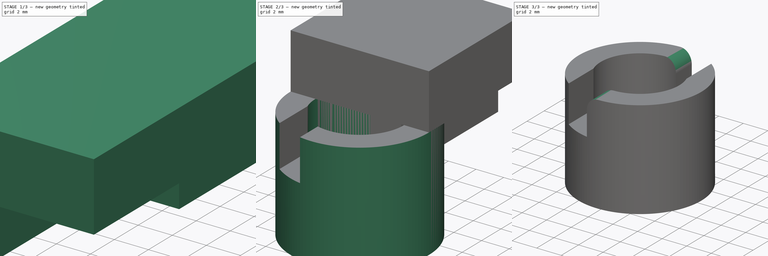
[diagram: build sequence overview — one tinted view per stage of 3, left to right]
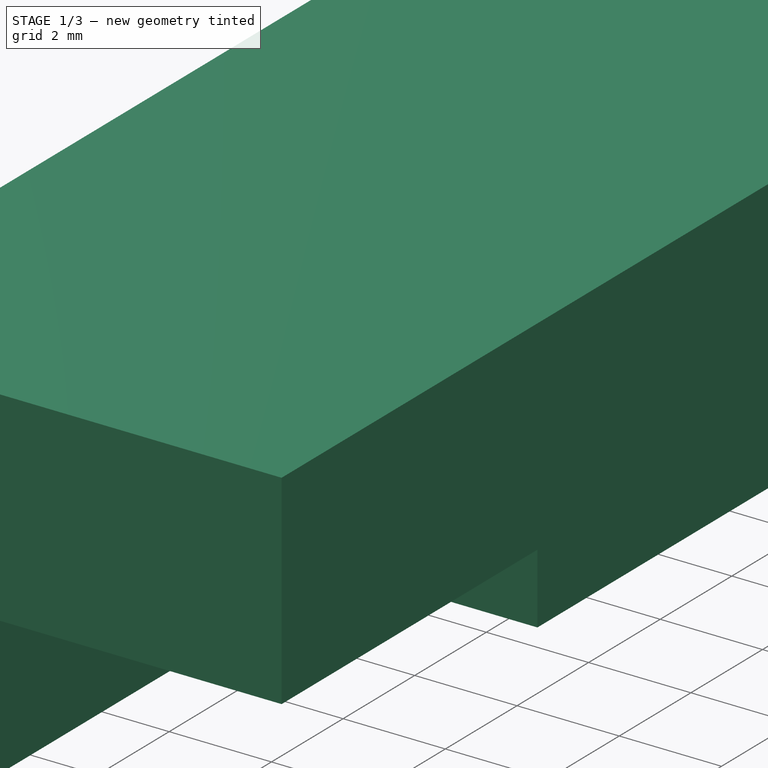
[diagram: stage 1 of 3 — iso view after this stage's code; geometry added in this stage tinted green]
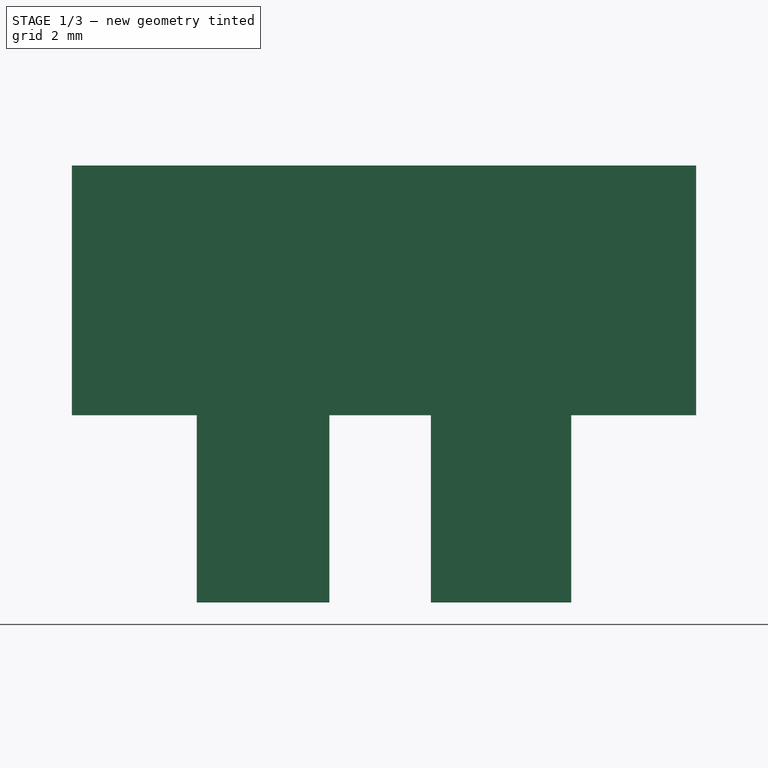
[diagram: stage 1 of 3 — front view after this stage's code; geometry added in this stage tinted green]
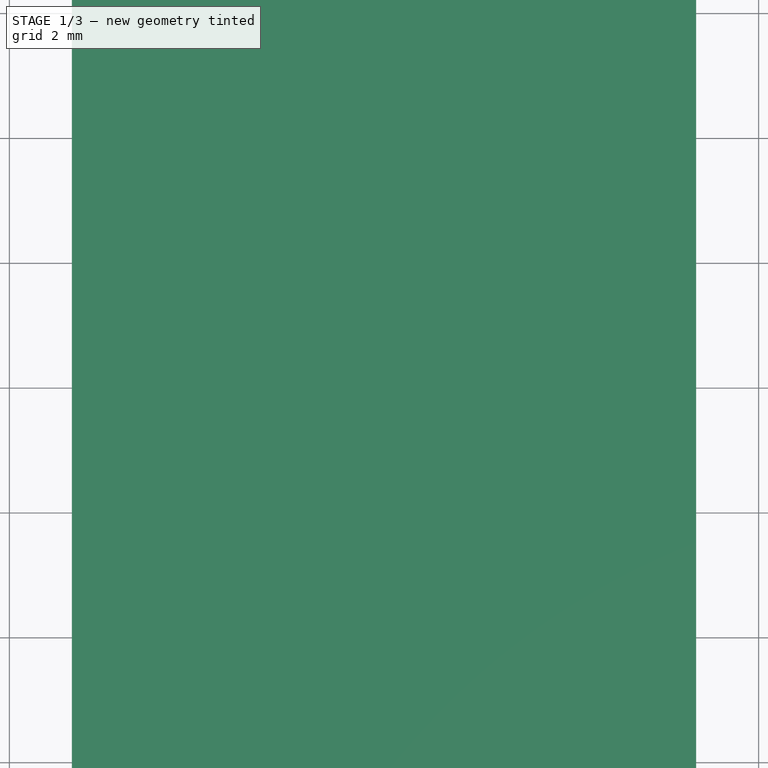
[diagram: stage 1 of 3 — top view after this stage's code; geometry added in this stage tinted green]
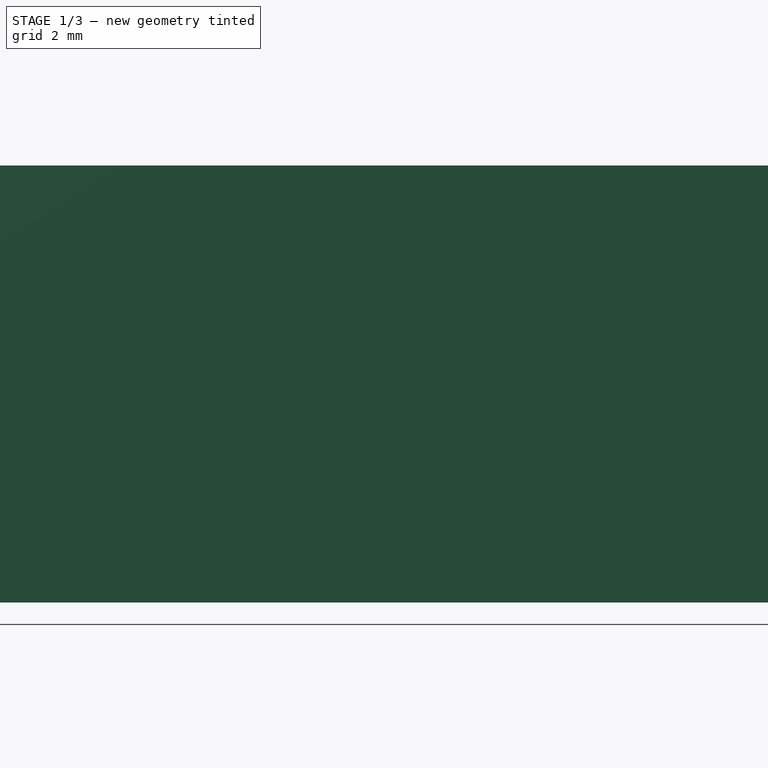
[diagram: stage 1 of 3 — right view after this stage's code; geometry added in this stage tinted green]
FCSTD DOCUMENT  (FreeCAD 0.15R4671 (Git))
Label: ButtonFrame
License: All rights reserved
LicenseURL: http://en.wikipedia.org/wiki/All_rights_reserved
objects: Sketcher::SketchObject×3, PartDesign::Pad×3, Part::Cut×2, PartDesign::Fillet×1
note: 12 computed .brp shape members not serialized (recipe doc carries the construction recipe); baked Part::Feature solids carry a one-line shape summary decoded from their .brp

FEATURE [Sketcher::SketchObject] Sketch001
  Placement = pos=(0,0,0) rot=(1,0,0;1.5708rad)
  sketch-geometry (8):
    g0: LineSegment StartX=5 StartY=8 StartZ=0 EndX=5 EndY=12 EndZ=0
    g1: LineSegment StartX=5 StartY=12 StartZ=0 EndX=-5 EndY=12 EndZ=0
    g2: LineSegment StartX=-5 StartY=12 StartZ=0 EndX=-5 EndY=8 EndZ=0
    g3: LineSegment StartX=-0.875 StartY=8 StartZ=0 EndX=-0.875 EndY=5 EndZ=0
    g4: LineSegment StartX=-0.875 StartY=5 StartZ=0 EndX=-3 EndY=5 EndZ=0
    g5: LineSegment StartX=-3 StartY=5 StartZ=0 EndX=-3 EndY=8 EndZ=0
    g6: LineSegment StartX=-5 StartY=8 StartZ=0 EndX=-3 EndY=8 EndZ=0
    g7: LineSegment StartX=-0.875 StartY=8 StartZ=0 EndX=5 EndY=8 EndZ=0
  constraints (23):
    c: DistanceY(g-1,g3) = 8
    c: Vertical(g0)
    c: Coincident(g0,g1)
    c: Horizontal(g1)
    c: Coincident(g1,g2)
    c: Vertical(g2)
    c: DistanceY(g-1,g1) = 12
    c: Symmetric(g0,g2,g-2)
    c: DistanceX(g1) = -10
    c: Vertical(g3)
    c: Coincident(g4,g3)
    c: Horizontal(g4)
    c: Coincident(g5,g4)
    c: Vertical(g5)
    c: Coincident(g6,g2)
    c: Coincident(g6,g5)
    c: Horizontal(g6)
    c: DistanceX(g4) = -2.125
    c: DistanceY(g5) = 3
    c: Coincident(g7,g3)
    c: Coincident(g7,g0)
    c: Horizontal(g7)
    c: DistanceX(g6) = 2
FEATURE [PartDesign::Pad] Pad001
  Length = 10
  Length2 = 100
  Placement = pos=(0,0,0) rot=(1,0,0;1.5708rad)
  Sketch = -> Sketch001
  Type = 0
FEATURE [Sketcher::SketchObject] Sketch002
  Placement = pos=(0,0,0) rot=(1,0,0;1.5708rad)
  sketch-geometry (8):
    g0: LineSegment StartX=-5 StartY=8 StartZ=0 EndX=0.75 EndY=8 EndZ=0
    g1: LineSegment StartX=0.75 StartY=8 StartZ=0 EndX=0.75 EndY=5 EndZ=0
    g2: LineSegment StartX=0.75 StartY=5 StartZ=0 EndX=3 EndY=5 EndZ=0
    g3: LineSegment StartX=3 StartY=5 StartZ=0 EndX=3 EndY=8 EndZ=0
    g4: LineSegment StartX=3 StartY=8 StartZ=0 EndX=5 EndY=8 EndZ=0
    g5: LineSegment StartX=5 StartY=8 StartZ=0 EndX=5 EndY=12 EndZ=0
    g6: LineSegment StartX=5 StartY=12 StartZ=0 EndX=-5 EndY=12 EndZ=0
    g7: LineSegment StartX=-5 StartY=12 StartZ=0 EndX=-5 EndY=8 EndZ=0
  constraints (23):
    c: Horizontal(g0)
    c: Coincident(g0,g1)
    c: Vertical(g1)
    c: Coincident(g1,g2)
    c: Horizontal(g2)
    c: Coincident(g2,g3)
    c: Vertical(g3)
    c: Coincident(g3,g4)
    c: Horizontal(g4)
    c: Coincident(g4,g5)
    c: Vertical(g5)
    c: Coincident(g5,g6)
    c: Horizontal(g6)
    c: Coincident(g6,g7)
    c: Vertical(g7)
    c: Coincident(g0,g7)
    c: DistanceX(g4) = 2
    c: DistanceY(g-1,g5) = 12
    c: DistanceX(g6) = -10
    c: Symmetric(g0,g4,g-2)
    c: DistanceY(g5) = 4
    c: DistanceX(g2) = 2.25
    c: DistanceY(g3) = 3
FEATURE [PartDesign::Pad] Pad002
  Length = 10
  Length2 = 100
  Placement = pos=(0,0,0) rot=(1,0,0;1.5708rad)
  Reversed = true
  Sketch = -> Sketch002
  Type = 0
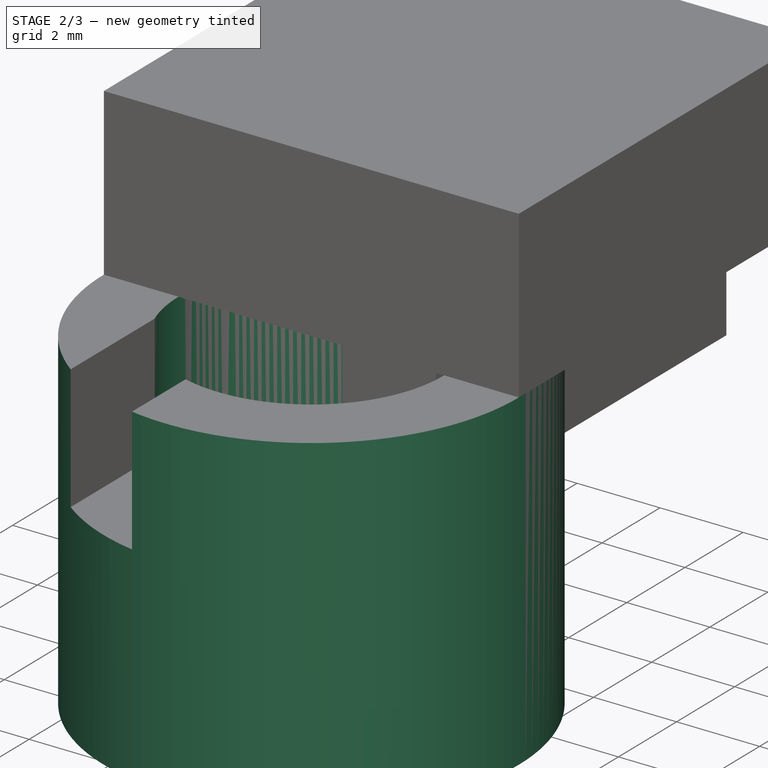
[diagram: stage 2 of 3 — iso view after this stage's code; geometry added in this stage tinted green]
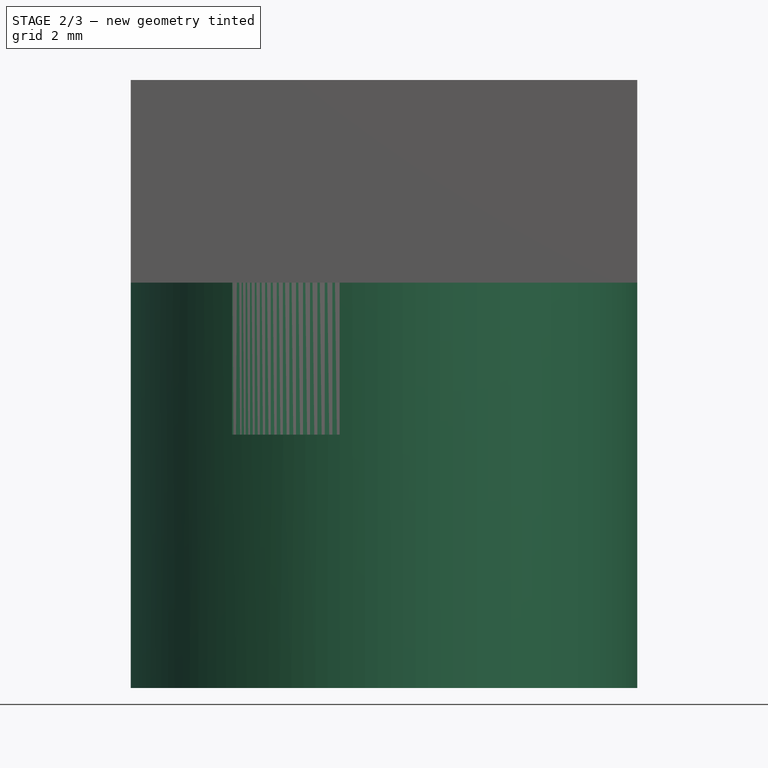
[diagram: stage 2 of 3 — front view after this stage's code; geometry added in this stage tinted green]
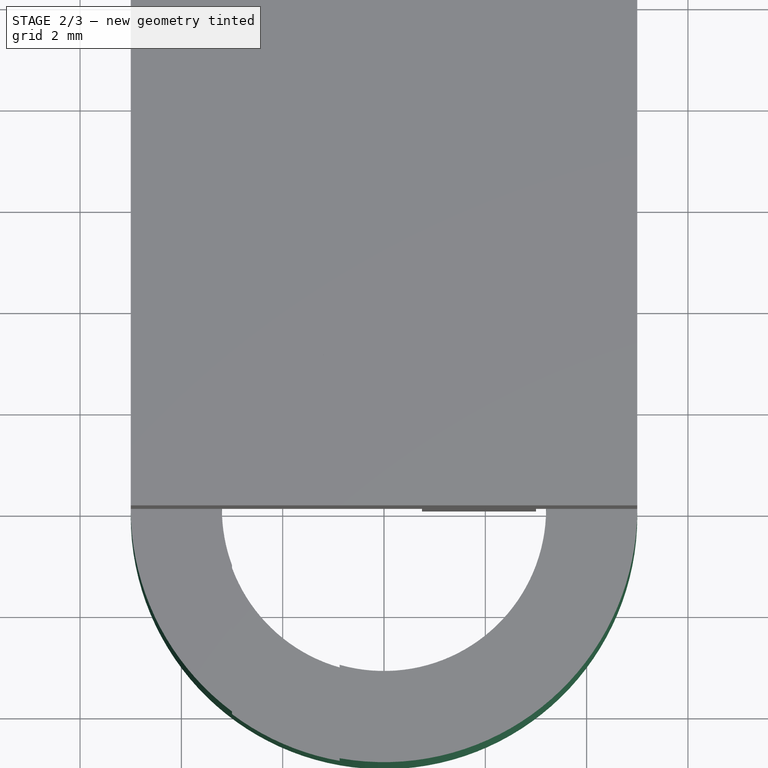
[diagram: stage 2 of 3 — top view after this stage's code; geometry added in this stage tinted green]
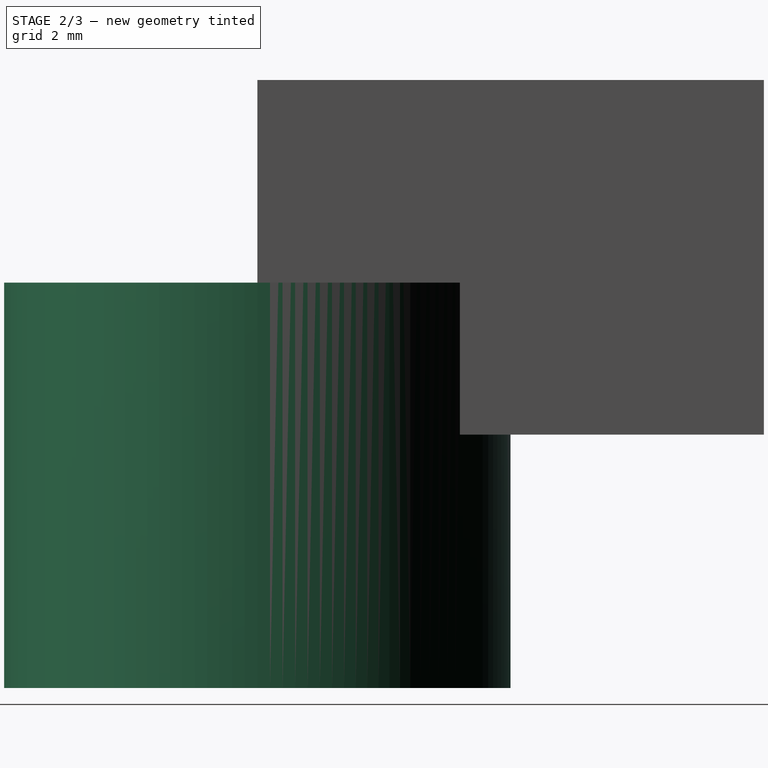
[diagram: stage 2 of 3 — right view after this stage's code; geometry added in this stage tinted green]
FEATURE [Sketcher::SketchObject] Sketch
  sketch-geometry (2):
    g0: Circle CenterX=0 CenterY=0 CenterZ=0 NormalX=0 NormalY=0 NormalZ=1 Radius=5
    g1: Circle CenterX=0 CenterY=0 CenterZ=0 NormalX=0 NormalY=0 NormalZ=1 Radius=3.2
  constraints (4):
    c: Coincident(g0,g-1)
    c: Radius(g0) = 5
    c: Coincident(g1,g-1)
    c: Radius(g1) = 3.2
FEATURE [PartDesign::Pad] Pad
  Length = 12
  Length2 = 100
  Sketch = -> Sketch
  Type = 0
FEATURE [Part::Cut] Cut
  Base = -> Pad
  Tool = -> Pad001
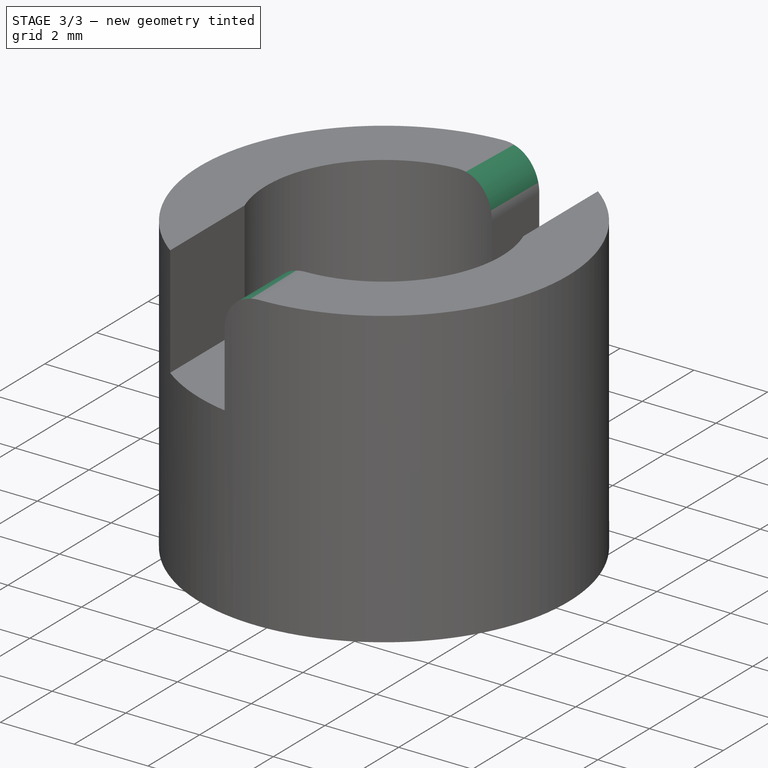
[diagram: stage 3 of 3 — iso view after this stage's code; geometry added in this stage tinted green]
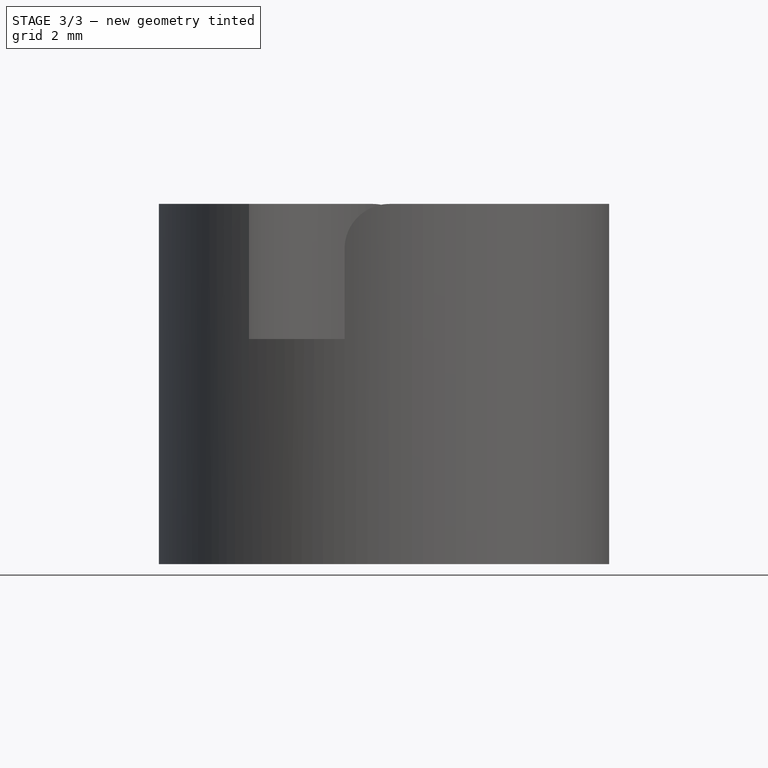
[diagram: stage 3 of 3 — front view after this stage's code; geometry added in this stage tinted green]
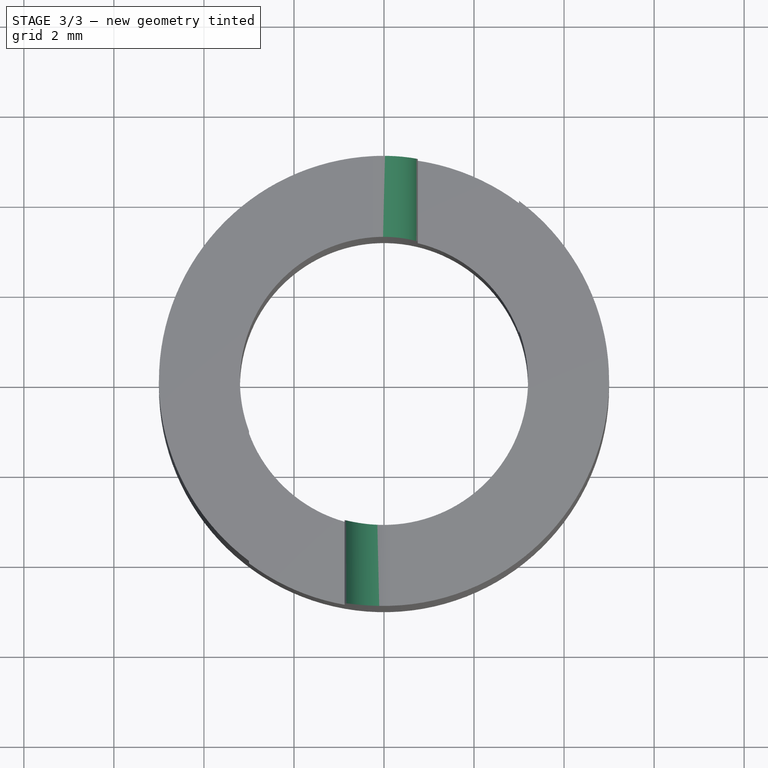
[diagram: stage 3 of 3 — top view after this stage's code; geometry added in this stage tinted green]
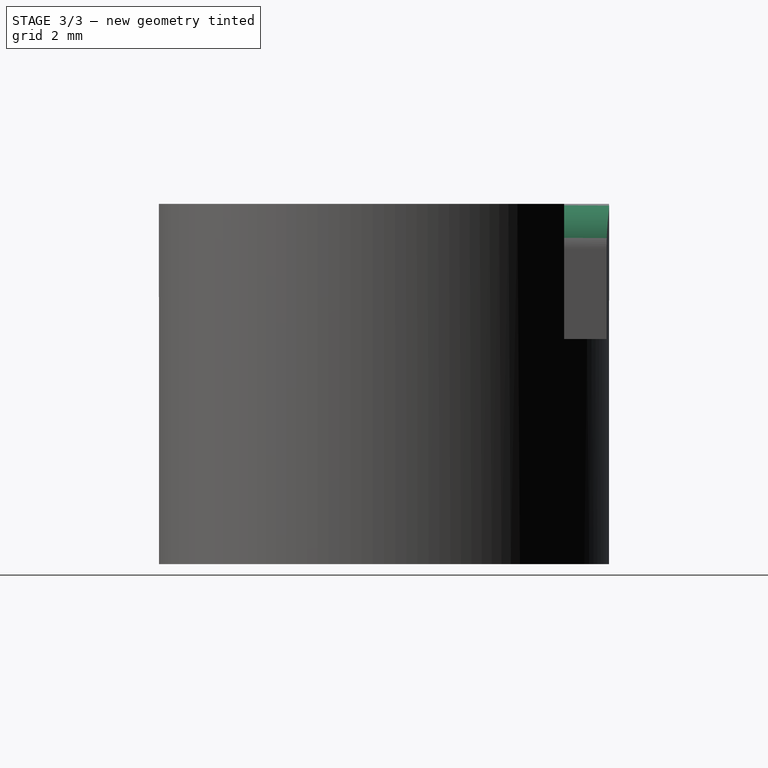
[diagram: stage 3 of 3 — right view after this stage's code; geometry added in this stage tinted green]
FEATURE [Part::Cut] Cut001
  Base = -> Cut
  Tool = -> Pad002
FEATURE [PartDesign::Fillet] Fillet
  Base = -> Cut001 [Edge15,Edge25]
  Radius = 1
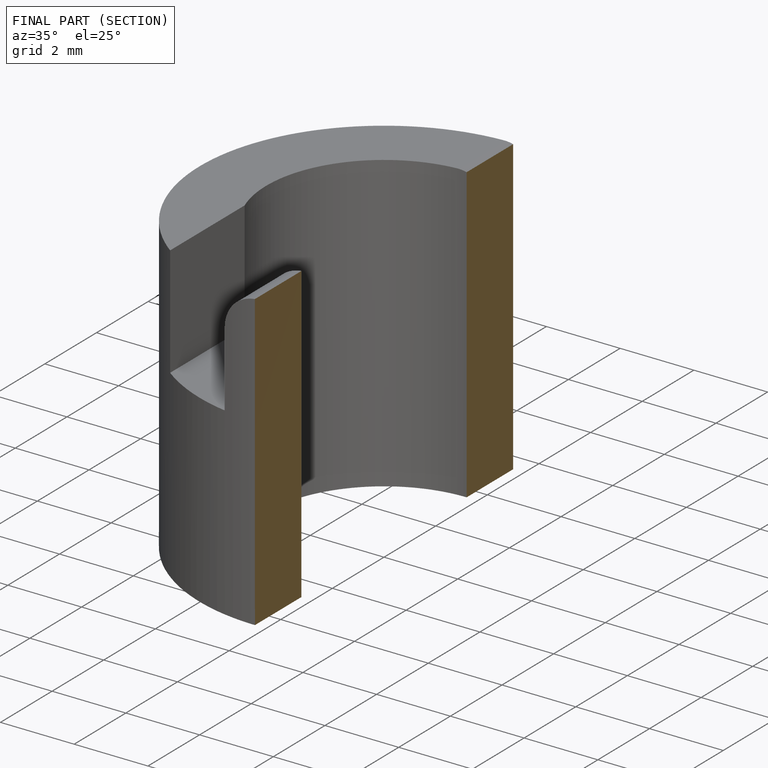
[diagram: finished part — half-section view (interior)]
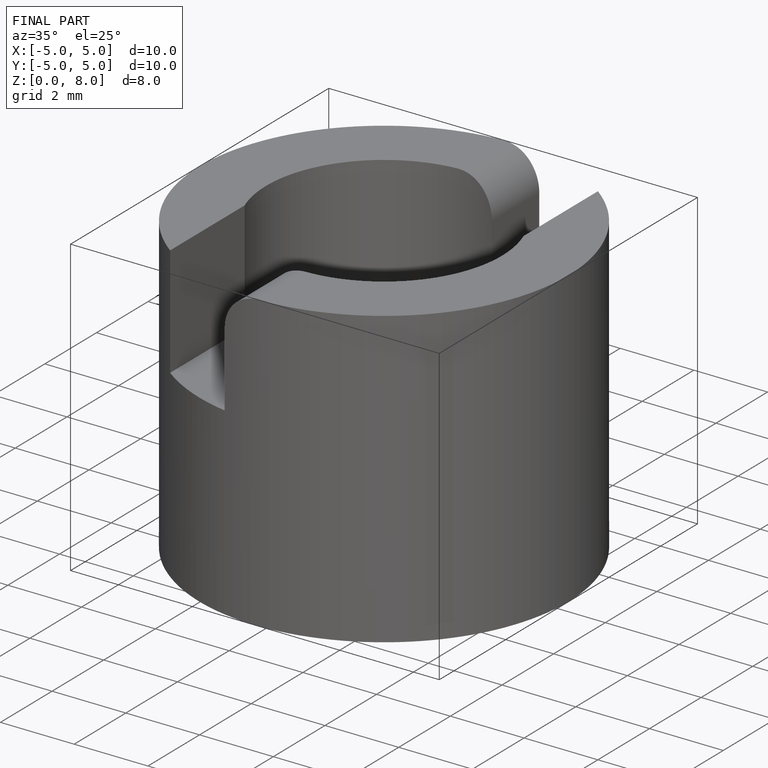
[diagram: finished part — iso view with bounding-box wireframe]
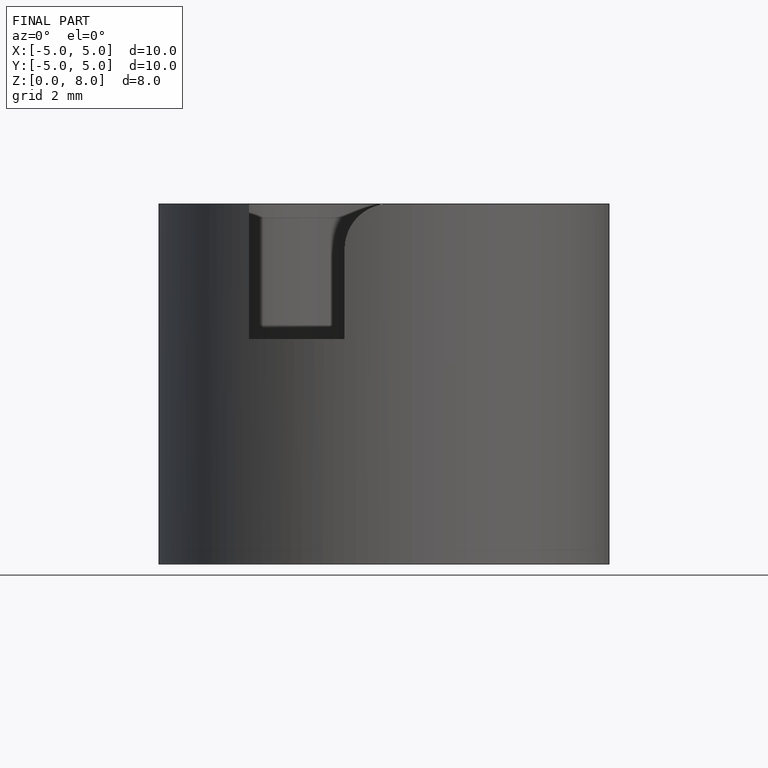
[diagram: finished part — front view with bounding-box wireframe]
